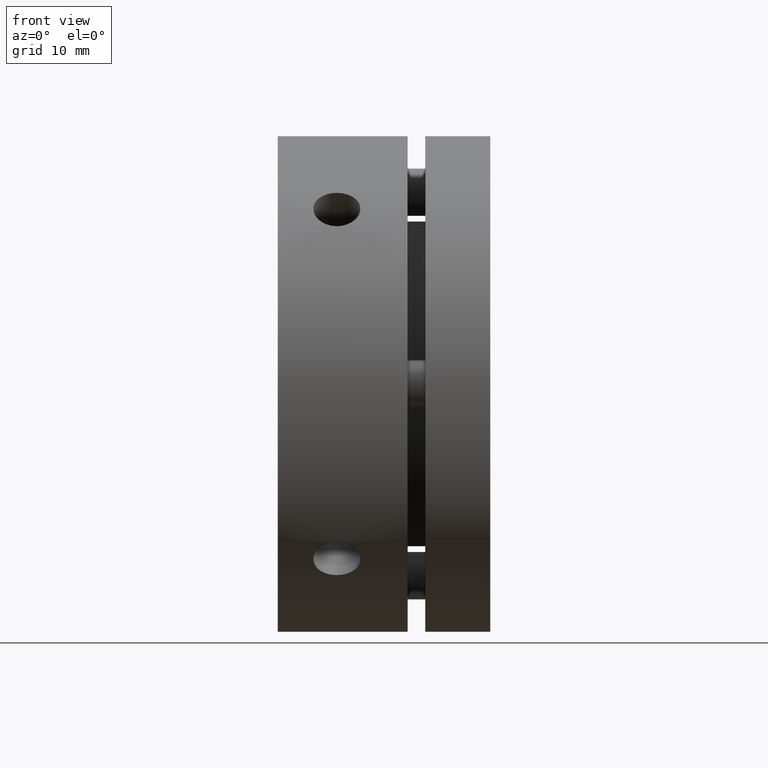
[diagram: clean part render]
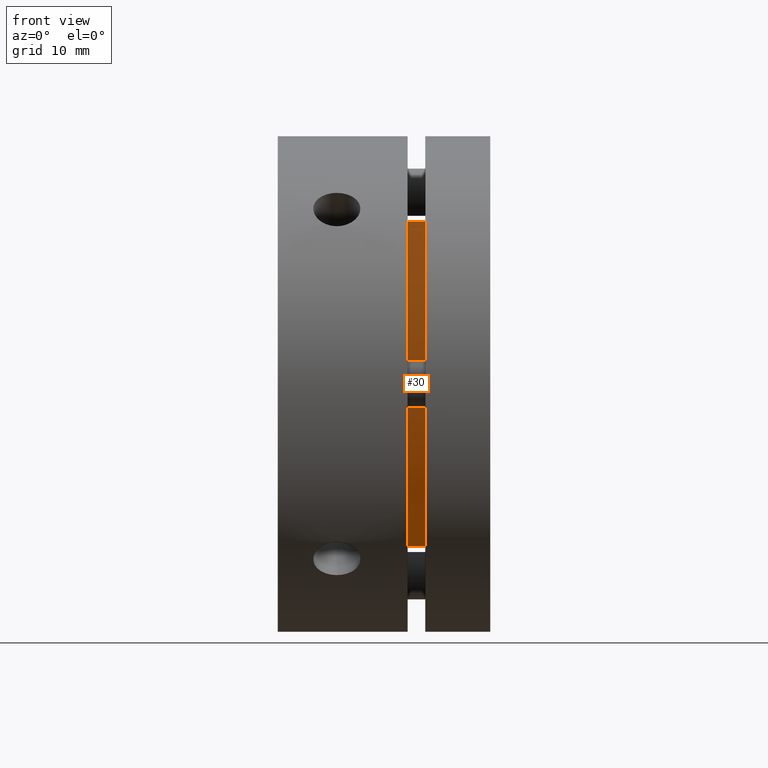
[diagram: same view with one face highlighted and labeled with its STEP entity id]
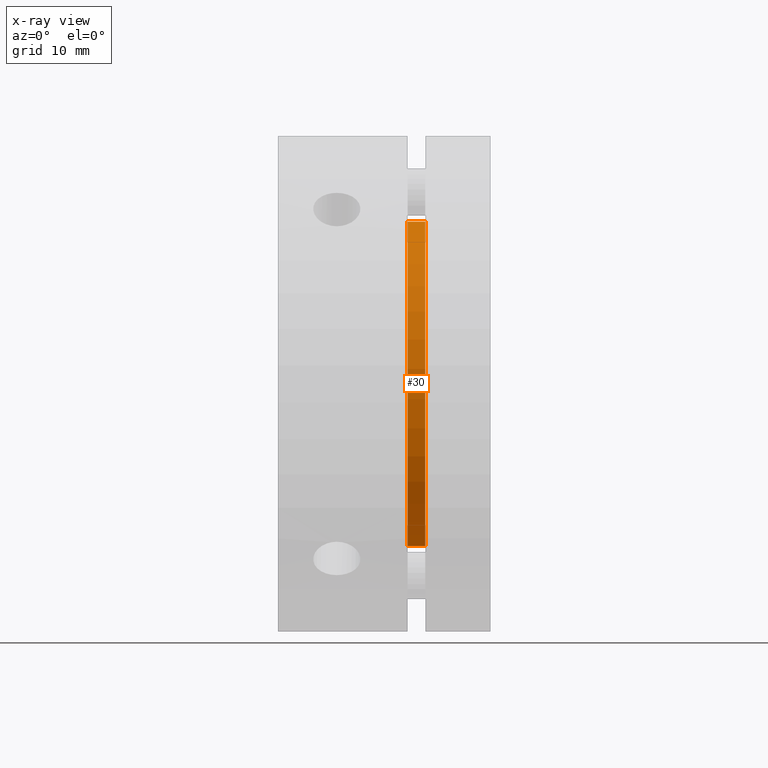
[diagram: x-ray of the same camera — body ghosted, the highlighted face saturated]
A machine part, front view. The second image highlights one B-rep face of the part: STEP entity #30.
The next image is the same camera in x-ray: the body ghosted, the highlighted face saturated — about 0% of this face is hidden behind the body in this view.
In plain terms, the highlighted cylindrical surface (partial cylindrical patch) has radius 13.75 mm, axis along (-1, 0, 0).
Its self-contained STEP definition (entity closure, byte-faithful):
#30 = ADVANCED_FACE ( 'NONE', ( #2309 ), #2313, .T. ) ;
#176 = CIRCLE ( 'NONE', #980, 13.75000000000000000 ) ;
#379 = EDGE_CURVE ( 'NONE', #1951, #2029, #2589, .T. ) ;
#382 = EDGE_CURVE ( 'NONE', #2077, #2058, #2608, .T. ) ;
#468 = AXIS2_PLACEMENT_3D ( 'NONE', #1333, #1336, #1354 ) ;
#555 = ORIENTED_EDGE ( 'NONE', *, *, #835, .T. ) ;
#612 = ORIENTED_EDGE ( 'NONE', *, *, #379, .F. ) ;
#613 = ORIENTED_EDGE ( 'NONE', *, *, #382, .T. ) ;
#835 = EDGE_CURVE ( 'NONE', #2058, #2029, #2707, .T. ) ;
#912 = AXIS2_PLACEMENT_3D ( 'NONE', #2411, #2410, #2409 ) ;
#980 = AXIS2_PLACEMENT_3D ( 'NONE', #3284, #3499, #3335 ) ;
#1333 = CARTESIAN_POINT ( 'NONE',  ( 11.75000000000000400, 0.0000000000000000000, 0.0000000000000000000 ) ) ;
#1336 = DIRECTION ( 'NONE',  ( -1.000000000000000000, 0.0000000000000000000, 0.0000000000000000000 ) ) ;
#1354 = DIRECTION ( 'NONE',  ( 0.0000000000000000000, 0.0000000000000000000, 1.000000000000000000 ) ) ;
#1461 = EDGE_CURVE ( 'NONE', #1951, #2077, #176, .T. ) ;
#1479 = ORIENTED_EDGE ( 'NONE', *, *, #1461, .T. ) ;
#1639 = DIRECTION ( 'NONE',  ( -1.000000000000000000, 0.0000000000000000000, 0.0000000000000000000 ) ) ;
#1640 = CARTESIAN_POINT ( 'NONE',  ( 11.75000000000000400, 0.0000000000000000000, 13.75000000000000000 ) ) ;
#1641 = DIRECTION ( 'NONE',  ( -1.000000000000000000, 0.0000000000000000000, 0.0000000000000000000 ) ) ;
#1645 = CARTESIAN_POINT ( 'NONE',  ( 11.75000000000000400, 1.683889348827610700E-015, -13.75000000000000000 ) ) ;
#1951 = VERTEX_POINT ( 'NONE', #3424 ) ;
#2029 = VERTEX_POINT ( 'NONE', #3353 ) ;
#2058 = VERTEX_POINT ( 'NONE', #3354 ) ;
#2077 = VERTEX_POINT ( 'NONE', #3338 ) ;
#2209 = EDGE_LOOP ( 'NONE', ( #612, #1479, #613, #555 ) ) ;
#2309 = FACE_OUTER_BOUND ( 'NONE', #2209, .T. ) ;
#2313 = CYLINDRICAL_SURFACE ( 'NONE', #468, 13.75000000000000000 ) ;
#2409 = DIRECTION ( 'NONE',  ( 0.0000000000000000000, 0.0000000000000000000, 1.000000000000000000 ) ) ;
#2410 = DIRECTION ( 'NONE',  ( 1.000000000000000000, -0.0000000000000000000, -0.0000000000000000000 ) ) ;
#2411 = CARTESIAN_POINT ( 'NONE',  ( 11.00000000000000000, 0.0000000000000000000, 0.0000000000000000000 ) ) ;
#2589 = LINE ( 'NONE', #1645, #2599 ) ;
#2599 = VECTOR ( 'NONE', #1641, 1000.000000000000000 ) ;
#2608 = LINE ( 'NONE', #1640, #2610 ) ;
#2610 = VECTOR ( 'NONE', #1639, 1000.000000000000000 ) ;
#2707 = CIRCLE ( 'NONE', #912, 13.75000000000000000 ) ;
#3284 = CARTESIAN_POINT ( 'NONE',  ( 12.50000000000000200, 0.0000000000000000000, 0.0000000000000000000 ) ) ;
#3335 = DIRECTION ( 'NONE',  ( 0.0000000000000000000, 0.0000000000000000000, 1.000000000000000000 ) ) ;
#3338 = CARTESIAN_POINT ( 'NONE',  ( 12.50000000000000200, 0.0000000000000000000, 13.75000000000000000 ) ) ;
#3353 = CARTESIAN_POINT ( 'NONE',  ( 11.00000000000000000, 1.683889348827610700E-015, -13.75000000000000000 ) ) ;
#3354 = CARTESIAN_POINT ( 'NONE',  ( 11.00000000000000000, 0.0000000000000000000, 13.75000000000000000 ) ) ;
#3424 = CARTESIAN_POINT ( 'NONE',  ( 12.50000000000000200, 1.683889348827610700E-015, -13.75000000000000000 ) ) ;
#3499 = DIRECTION ( 'NONE',  ( -1.000000000000000000, 0.0000000000000000000, 0.0000000000000000000 ) ) ;